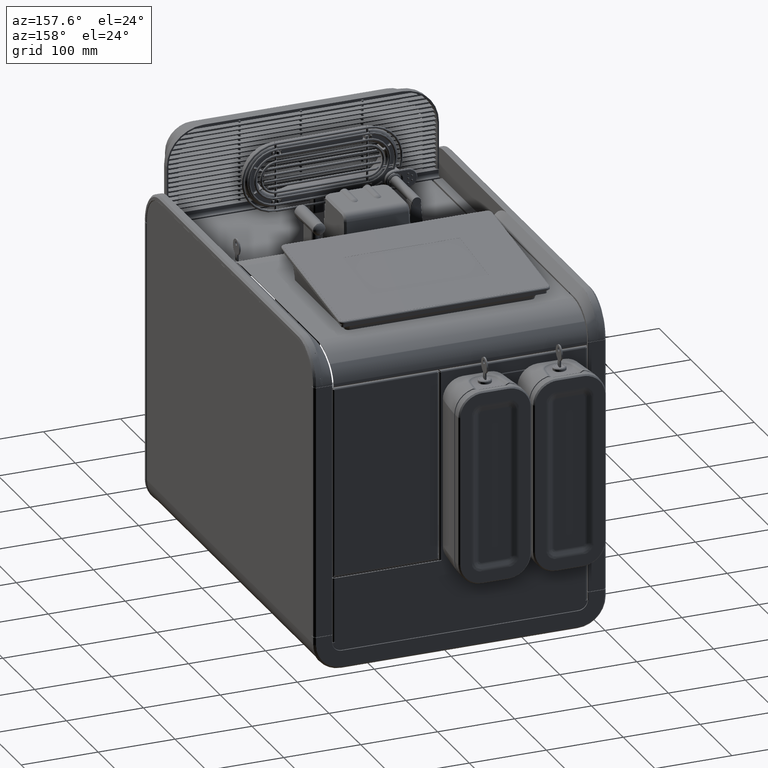
[diagram: clean part render]
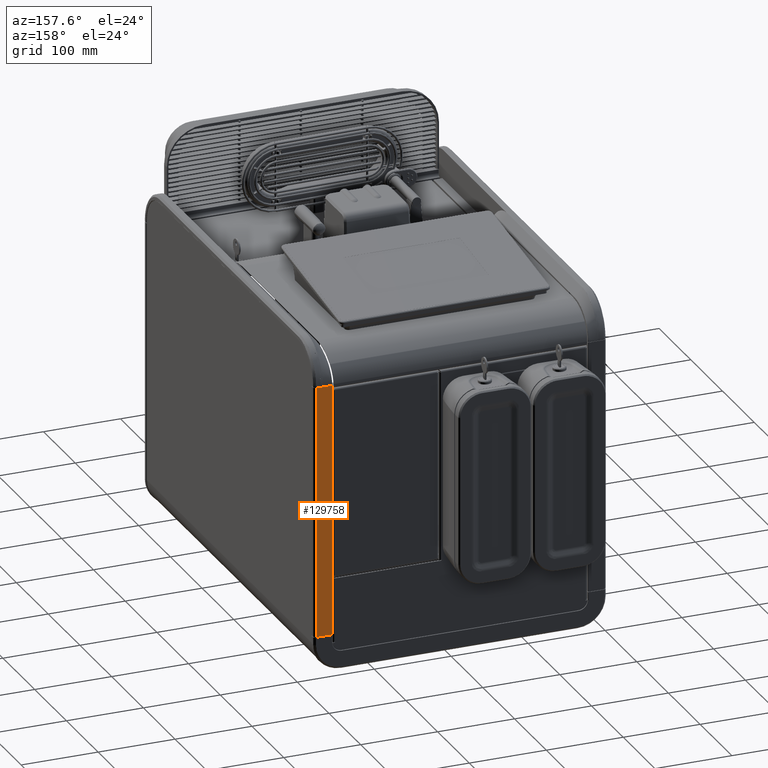
[diagram: same view with one face highlighted and labeled with its STEP entity id]
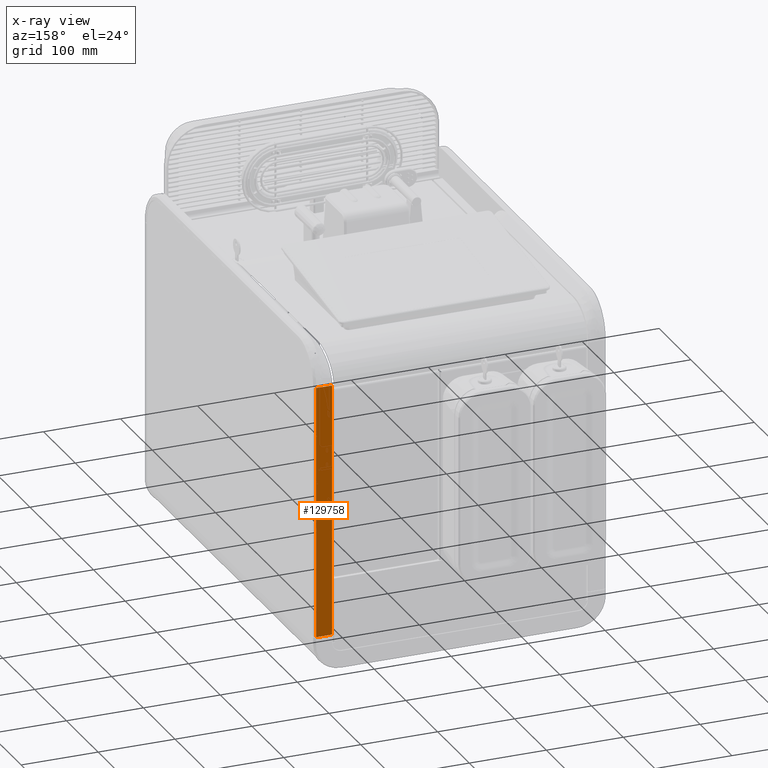
[diagram: x-ray of the same camera — body ghosted, the highlighted face saturated]
A machine part, auxiliary view. The second image highlights one B-rep face of the part: STEP entity #129758.
The next image is the same camera in x-ray: the body ghosted, the highlighted face saturated — about 0% of this face is hidden behind the body in this view.
In plain terms, the highlighted planar face has unit normal (-0, 1, 0).
Its self-contained STEP definition (entity closure, byte-faithful):
#22973=FACE_OUTER_BOUND('',#29004,.T.);
#29004=EDGE_LOOP('',(#95481,#95482,#95483,#95484));
#36223=LINE('',#187801,#46248);
#36250=LINE('',#187859,#46275);
#36264=LINE('',#187890,#46289);
#36269=LINE('',#187905,#46294);
#46248=VECTOR('',#149172,10.);
#46275=VECTOR('',#149217,10.);
#46289=VECTOR('',#149251,10.);
#46294=VECTOR('',#149264,10.);
#56280=VERTEX_POINT('',#187798);
#56281=VERTEX_POINT('',#187800);
#56303=VERTEX_POINT('',#187857);
#56310=VERTEX_POINT('',#187888);
#72518=EDGE_CURVE('',#56280,#56281,#36223,.T.);
#72548=EDGE_CURVE('',#56280,#56303,#36250,.T.);
#72566=EDGE_CURVE('',#56310,#56303,#36264,.T.);
#72574=EDGE_CURVE('',#56281,#56310,#36269,.T.);
#95481=ORIENTED_EDGE('',*,*,#72566,.F.);
#95482=ORIENTED_EDGE('',*,*,#72574,.F.);
#95483=ORIENTED_EDGE('',*,*,#72518,.F.);
#95484=ORIENTED_EDGE('',*,*,#72548,.T.);
#127621=PLANE('',#136365);
#129758=ADVANCED_FACE('',(#22973),#127621,.T.);
#136365=AXIS2_PLACEMENT_3D('',#187906,#149265,#149266);
#149172=DIRECTION('',(1.85186871922994E-14,-1.22195980062033E-14,1.));
#149217=DIRECTION('',(-1.,-7.28505021059686E-15,1.86366565809844E-14));
#149251=DIRECTION('',(-1.86366565809845E-14,1.22195980062033E-14,-1.));
#149264=DIRECTION('',(-1.,-7.28505021059686E-15,1.86366565809844E-14));
#149265=DIRECTION('center_axis',(-7.28505021059663E-15,1.,1.22195980062035E-14));
#149266=DIRECTION('ref_axis',(-1.86366565809845E-14,1.22195980062033E-14,
-1.));
#187798=CARTESIAN_POINT('',(187.236069419445,528.599999999972,-162.329666334223));
#187800=CARTESIAN_POINT('',(187.236069419451,528.599999999968,165.348157516706));
#187801=CARTESIAN_POINT('',(187.236069419446,528.599999999972,-101.240754408758));
#187857=CARTESIAN_POINT('',(166.613522389606,528.599999999972,-162.329666334223));
#187859=CARTESIAN_POINT('',(177.927462669721,528.599999999972,-162.329666334223));
#187888=CARTESIAN_POINT('',(166.613522389612,528.599999999968,165.348157516707));
#187890=CARTESIAN_POINT('',(166.613522389609,528.599999999971,-39.5907544087581));
#187905=CARTESIAN_POINT('',(177.927462669727,528.599999999968,165.348157516706));
#187906=CARTESIAN_POINT('Origin',(178.099988303553,528.599999999971,-80.6907544087582));